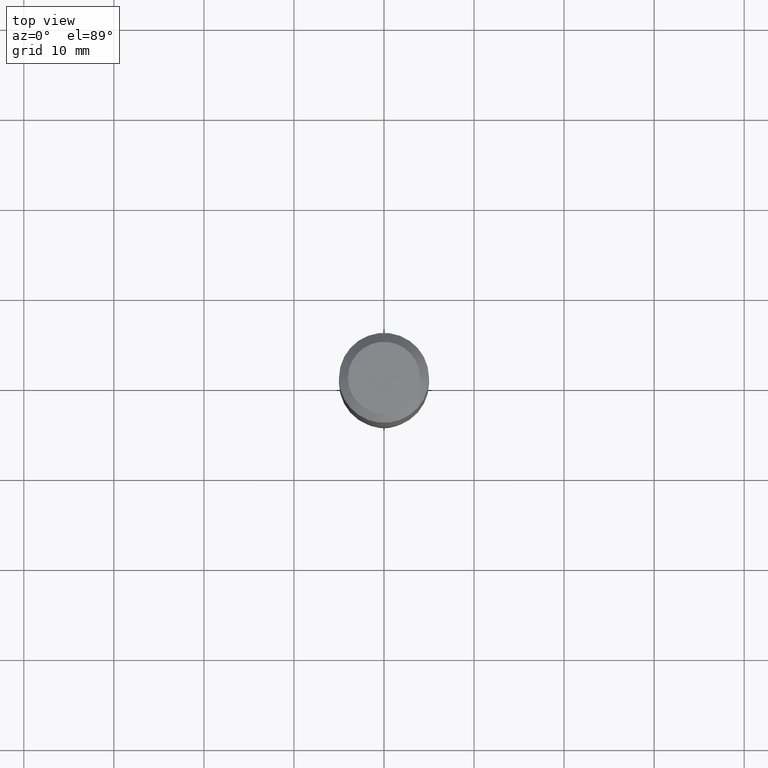
[diagram: clean part render]
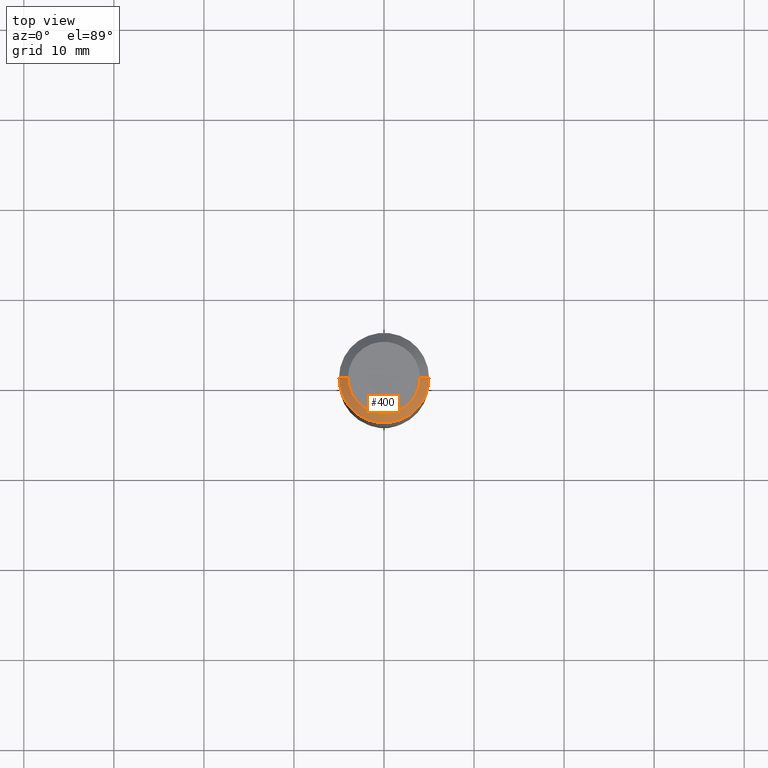
[diagram: same view with one face highlighted and labeled with its STEP entity id]
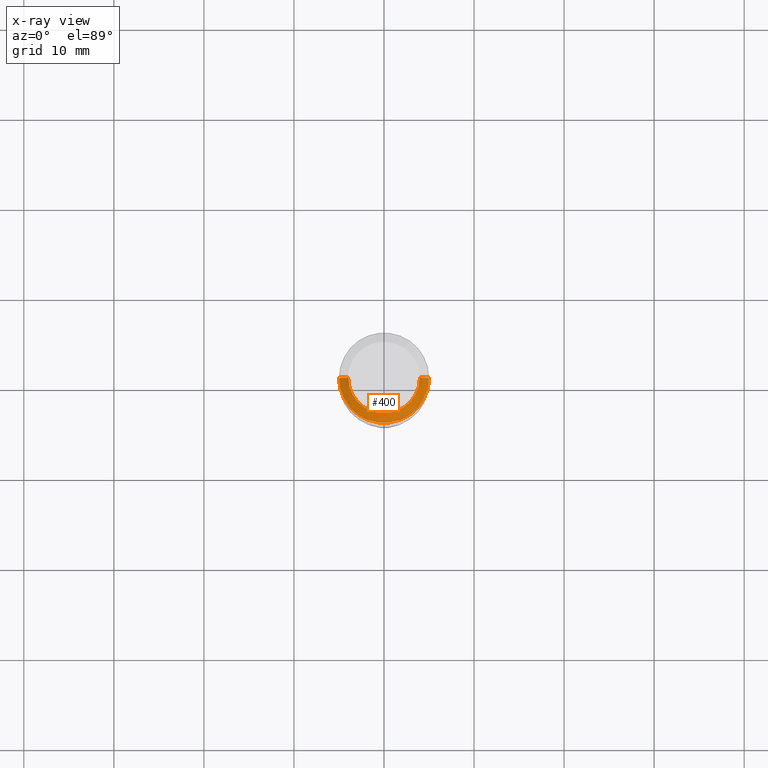
[diagram: x-ray of the same camera — body ghosted, the highlighted face saturated]
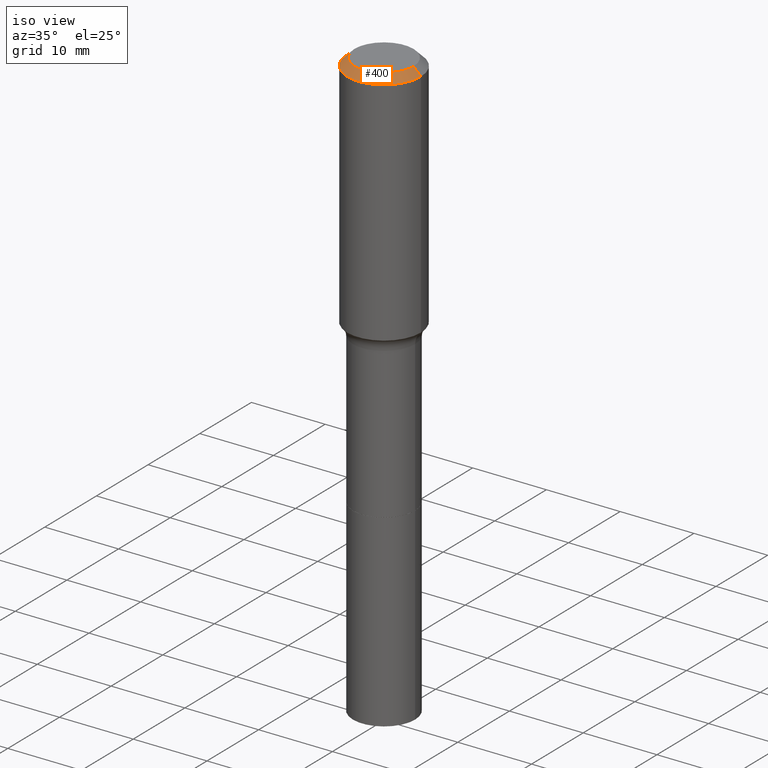
[diagram: same view with one face highlighted and labeled with its STEP entity id]
A machine part, top view. The second image highlights one B-rep face of the part: STEP entity #400.
The next image is the same camera in x-ray: the body ghosted, the highlighted face saturated — about 0% of this face is hidden behind the body in this view.
A second angle (iso view) of the same face is appended — the face is thin or edge-on in the first view.
In plain terms, the highlighted conical surface has half-angle 45 deg.
Its self-contained STEP definition (entity closure, byte-faithful):
#7 = VECTOR ( 'NONE', #390, 39.37007874015748143 ) ;
#14 = AXIS2_PLACEMENT_3D ( 'NONE', #294, #244, #446 ) ;
#33 = CIRCLE ( 'NONE', #237, 0.1574800000000000089 ) ;
#34 = DIRECTION ( 'NONE',  ( -2.445468806185136597E-29, 3.491481338843145583E-15, 1.000000000000000000 ) ) ;
#36 = CARTESIAN_POINT ( 'NONE',  ( -0.1968500000000000527, 1.237136582792286422E-15, -0.03937000000000030059 ) ) ;
#41 = ORIENTED_EDGE ( 'NONE', *, *, #309, .F. ) ;
#56 = ORIENTED_EDGE ( 'NONE', *, *, #266, .T. ) ;
#64 = VERTEX_POINT ( 'NONE', #326 ) ;
#106 = AXIS2_PLACEMENT_3D ( 'NONE', #131, #325, #200 ) ;
#117 = EDGE_LOOP ( 'NONE', ( #41, #452, #56, #495 ) ) ;
#126 = VERTEX_POINT ( 'NONE', #333 ) ;
#131 = CARTESIAN_POINT ( 'NONE',  ( 9.627810689950955906E-31, -1.374596203102556794E-16, -0.03937000000000030059 ) ) ;
#134 = FACE_OUTER_BOUND ( 'NONE', #117, .T. ) ;
#153 = LINE ( 'NONE', #193, #7 ) ;
#165 = CONICAL_SURFACE ( 'NONE', #14, 0.1968500000000000527, 0.7853981633974450594 ) ;
#193 = CARTESIAN_POINT ( 'NONE',  ( 0.1968500000000000527, -1.487948651171581996E-15, -0.03937000000000030059 ) ) ;
#198 = VERTEX_POINT ( 'NONE', #356 ) ;
#200 = DIRECTION ( 'NONE',  ( 1.000000000000000000, -6.982962677686266711E-15, 0.000000000000000000 ) ) ;
#201 = EDGE_CURVE ( 'NONE', #198, #126, #33, .T. ) ;
#235 = CIRCLE ( 'NONE', #106, 0.1968500000000000527 ) ;
#237 = AXIS2_PLACEMENT_3D ( 'NONE', #301, #34, #393 ) ;
#244 = DIRECTION ( 'NONE',  ( 2.445468806185136597E-29, -3.491481338843145583E-15, -1.000000000000000000 ) ) ;
#266 = EDGE_CURVE ( 'NONE', #198, #480, #431, .T. ) ;
#294 = CARTESIAN_POINT ( 'NONE',  ( 9.627810689950955906E-31, -1.374596203102556794E-16, -0.03937000000000030059 ) ) ;
#301 = CARTESIAN_POINT ( 'NONE',  ( -9.427742298522567634E-47, 1.346031739168368355E-32, 3.855188123715870730E-18 ) ) ;
#309 = EDGE_CURVE ( 'NONE', #126, #64, #153, .T. ) ;
#325 = DIRECTION ( 'NONE',  ( -2.445468806185136597E-29, 3.491481338843145583E-15, 1.000000000000000000 ) ) ;
#326 = CARTESIAN_POINT ( 'NONE',  ( 0.1968500000000000527, -1.512055823412797583E-15, -0.03937000000000030059 ) ) ;
#332 = CARTESIAN_POINT ( 'NONE',  ( -0.1968500000000000527, -8.941080557973042837E-16, -0.03937000000000030059 ) ) ;
#333 = CARTESIAN_POINT ( 'NONE',  ( 0.1574800000000000089, -1.284169937930321386E-15, 3.855188123724205385E-18 ) ) ;
#356 = CARTESIAN_POINT ( 'NONE',  ( -0.1574800000000000089, 1.168406772637159815E-15, 3.855188123707939751E-18 ) ) ;
#374 = EDGE_CURVE ( 'NONE', #480, #64, #235, .T. ) ;
#390 = DIRECTION ( 'NONE',  ( 0.7071067811865452413, -7.319954787623248157E-15, -0.7071067811865497932 ) ) ;
#393 = DIRECTION ( 'NONE',  ( 1.000000000000000000, -6.982962677686265922E-15, 4.876223630392693006E-29 ) ) ;
#400 = ADVANCED_FACE ( 'NONE', ( #134 ), #165, .T. ) ;
#431 = LINE ( 'NONE', #36, #501 ) ;
#446 = DIRECTION ( 'NONE',  ( -1.000000000000000000, 6.982962677686266711E-15, 0.000000000000000000 ) ) ;
#452 = ORIENTED_EDGE ( 'NONE', *, *, #201, .F. ) ;
#468 = DIRECTION ( 'NONE',  ( -0.7071067811865452413, 2.468850131082233000E-15, -0.7071067811865497932 ) ) ;
#480 = VERTEX_POINT ( 'NONE', #332 ) ;
#495 = ORIENTED_EDGE ( 'NONE', *, *, #374, .T. ) ;
#501 = VECTOR ( 'NONE', #468, 39.37007874015748143 ) ;